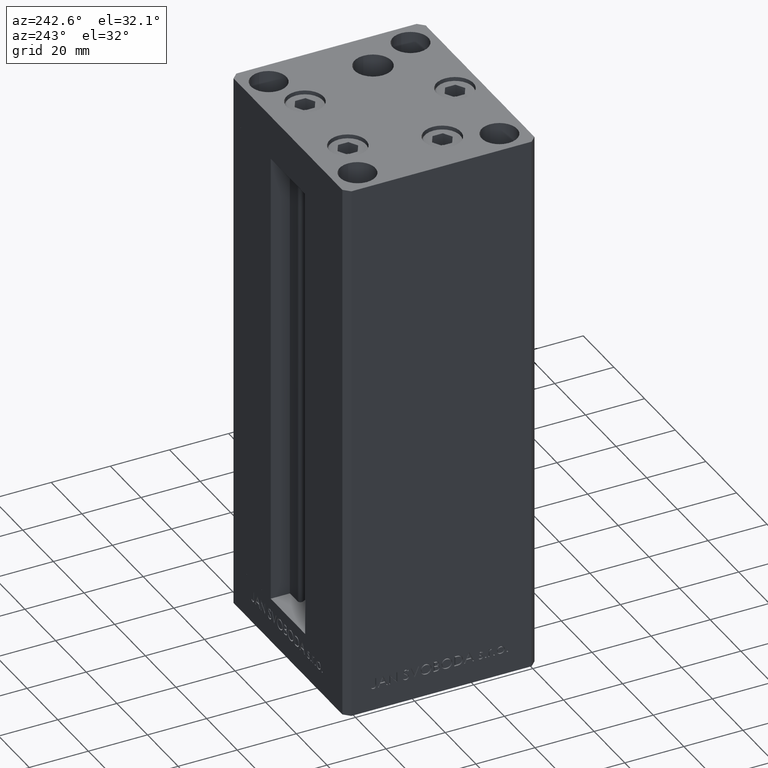
[diagram: clean part render]
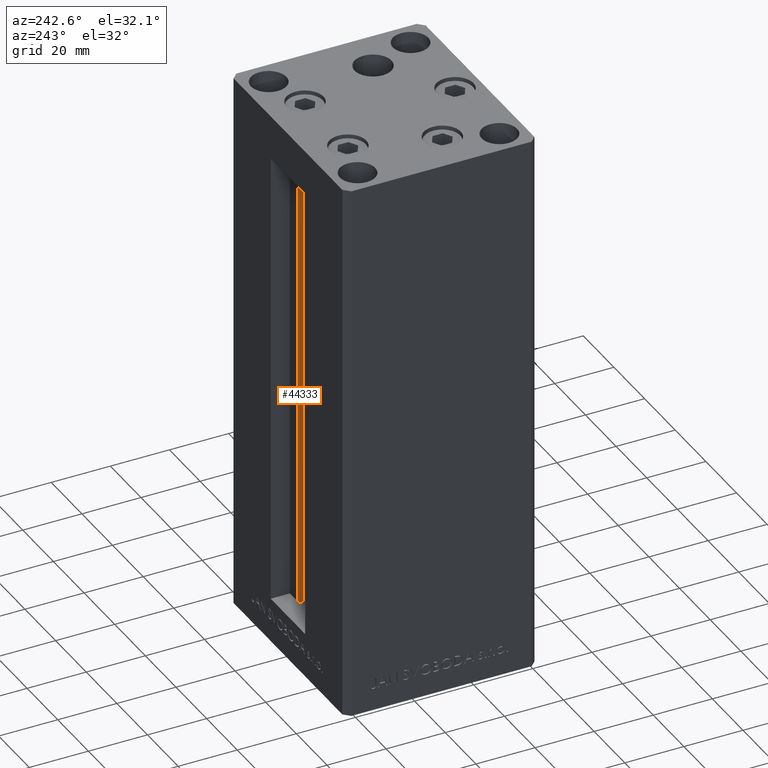
[diagram: same view with one face highlighted and labeled with its STEP entity id]
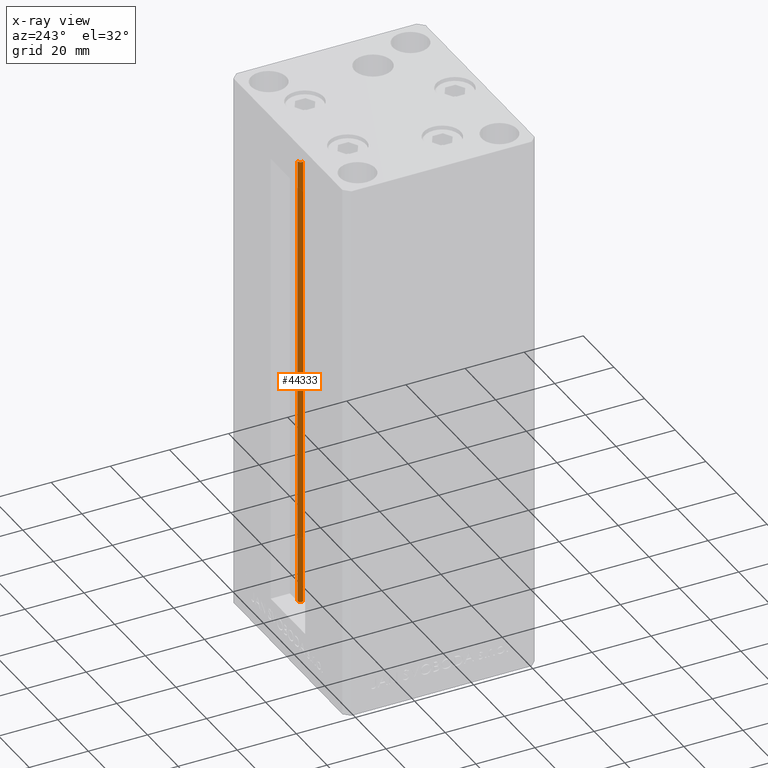
[diagram: x-ray of the same camera — body ghosted, the highlighted face saturated]
A machine part, auxiliary view. The second image highlights one B-rep face of the part: STEP entity #44333.
The next image is the same camera in x-ray: the body ghosted, the highlighted face saturated — about 0% of this face is hidden behind the body in this view.
In plain terms, the highlighted cylindrical surface (edge-blend (fillet) strip) has radius 0.9333 mm, axis along (0, 0, 1).
Its self-contained STEP definition (entity closure, byte-faithful):
#1264 = AXIS2_PLACEMENT_3D ( 'NONE', #23277, #16106, #22532 ) ;
#1613 = AXIS2_PLACEMENT_3D ( 'NONE', #6297, #2115, #32023 ) ;
#1626 = CYLINDRICAL_SURFACE ( 'NONE', #1613, 0.9333333333340008142 ) ;
#2115 = DIRECTION ( 'NONE',  ( -0.000000000000000000, -0.000000000000000000, 1.000000000000000000 ) ) ;
#3741 = CARTESIAN_POINT ( 'NONE',  ( 5.375042956467947164, 24.59999999999899245, 0.000000000000000000 ) ) ;
#4669 = ORIENTED_EDGE ( 'NONE', *, *, #11242, .T. ) ;
#6297 = CARTESIAN_POINT ( 'NONE',  ( 6.183333333334001480, 25.06666666666599141, 0.000000000000000000 ) ) ;
#6705 = LINE ( 'NONE', #3741, #10481 ) ;
#7415 = ORIENTED_EDGE ( 'NONE', *, *, #8665, .T. ) ;
#8665 = EDGE_CURVE ( 'NONE', #44293, #19854, #30965, .T. ) ;
#10481 = VECTOR ( 'NONE', #30428, 1000.000000000000000 ) ;
#11242 = EDGE_CURVE ( 'NONE', #41548, #44293, #6705, .T. ) ;
#11287 = EDGE_LOOP ( 'NONE', ( #25057, #40323, #4669, #7415 ) ) ;
#14847 = CARTESIAN_POINT ( 'NONE',  ( 5.375042956467947164, 24.59999999999899245, 0.000000000000000000 ) ) ;
#15387 = VERTEX_POINT ( 'NONE', #33737 ) ;
#16106 = DIRECTION ( 'NONE',  ( -0.000000000000000000, -0.000000000000000000, -1.000000000000000000 ) ) ;
#17597 = EDGE_CURVE ( 'NONE', #15387, #19854, #27722, .T. ) ;
#18039 = DIRECTION ( 'NONE',  ( -0.000000000000000000, -0.000000000000000000, 1.000000000000000000 ) ) ;
#19854 = VERTEX_POINT ( 'NONE', #30848 ) ;
#22532 = DIRECTION ( 'NONE',  ( 1.000000000000000000, 0.000000000000000000, 0.000000000000000000 ) ) ;
#23277 = CARTESIAN_POINT ( 'NONE',  ( 6.183333333334001480, 25.06666666666599141, 0.000000000000000000 ) ) ;
#24640 = AXIS2_PLACEMENT_3D ( 'NONE', #29549, #29789, #44665 ) ;
#25057 = ORIENTED_EDGE ( 'NONE', *, *, #17597, .F. ) ;
#26355 = VECTOR ( 'NONE', #18039, 1000.000000000000000 ) ;
#27722 = LINE ( 'NONE', #46797, #26355 ) ;
#29549 = CARTESIAN_POINT ( 'NONE',  ( 6.183333333334001480, 25.06666666666599141, 156.0000000000000000 ) ) ;
#29680 = EDGE_CURVE ( 'NONE', #41548, #15387, #44682, .T. ) ;
#29789 = DIRECTION ( 'NONE',  ( 0.000000000000000000, 0.000000000000000000, -1.000000000000000000 ) ) ;
#30428 = DIRECTION ( 'NONE',  ( -0.000000000000000000, -0.000000000000000000, 1.000000000000000000 ) ) ;
#30848 = CARTESIAN_POINT ( 'NONE',  ( 6.183333333334001480, 25.99999999999999289, 156.0000000000000000 ) ) ;
#30965 = CIRCLE ( 'NONE', #24640, 0.9333333333340008142 ) ;
#32023 = DIRECTION ( 'NONE',  ( 1.000000000000000000, 0.000000000000000000, 0.000000000000000000 ) ) ;
#33737 = CARTESIAN_POINT ( 'NONE',  ( 6.183333333334001480, 25.99999999999999289, 0.000000000000000000 ) ) ;
#36227 = FACE_OUTER_BOUND ( 'NONE', #11287, .T. ) ;
#38729 = CARTESIAN_POINT ( 'NONE',  ( 5.375042956467948052, 24.59999999999899245, 156.0000000000000000 ) ) ;
#40323 = ORIENTED_EDGE ( 'NONE', *, *, #29680, .F. ) ;
#41548 = VERTEX_POINT ( 'NONE', #14847 ) ;
#44293 = VERTEX_POINT ( 'NONE', #38729 ) ;
#44333 = ADVANCED_FACE ( 'NONE', ( #36227 ), #1626, .T. ) ;
#44665 = DIRECTION ( 'NONE',  ( 1.000000000000000000, 0.000000000000000000, 0.000000000000000000 ) ) ;
#44682 = CIRCLE ( 'NONE', #1264, 0.9333333333340008142 ) ;
#46797 = CARTESIAN_POINT ( 'NONE',  ( 6.183333333334001480, 25.99999999999999289, 0.000000000000000000 ) ) ;